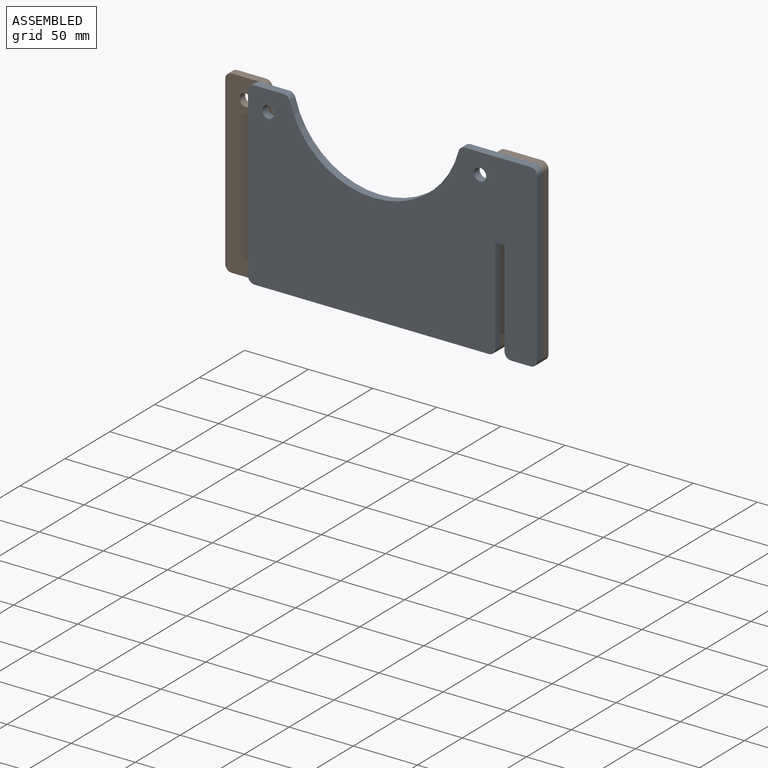
[diagram: assembled view]
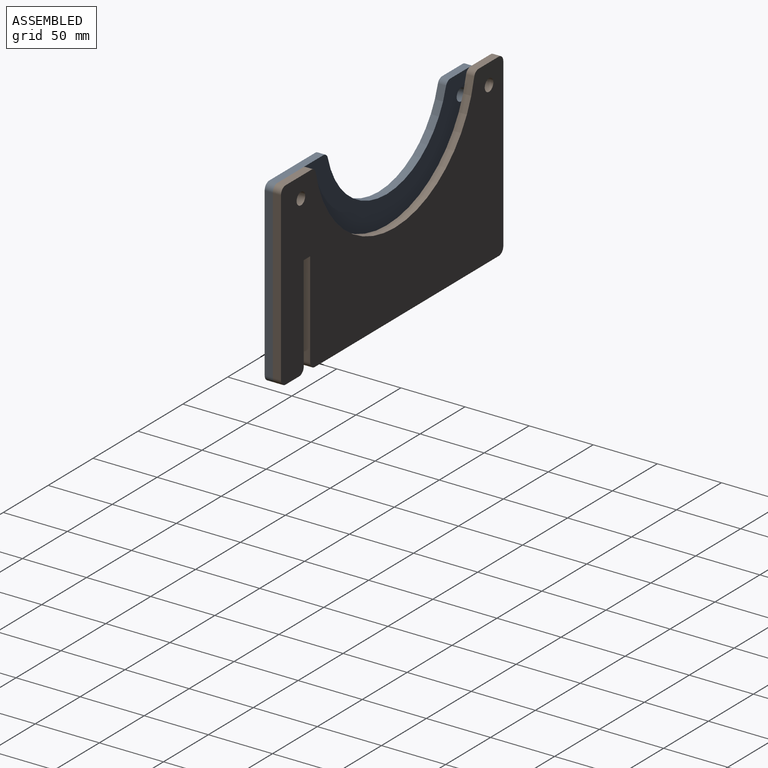
[diagram: assembled view, second angle]
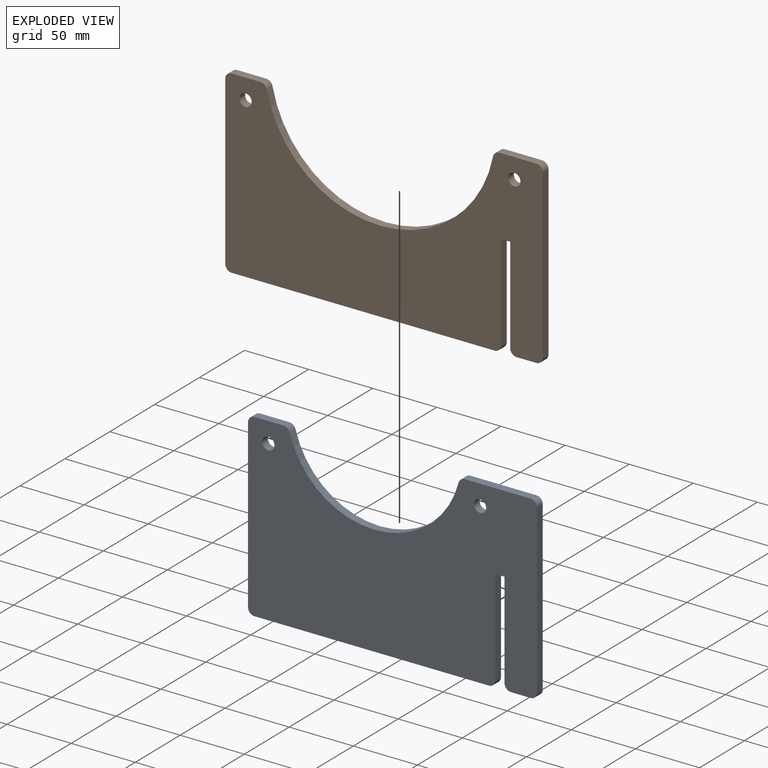
[diagram: exploded view]
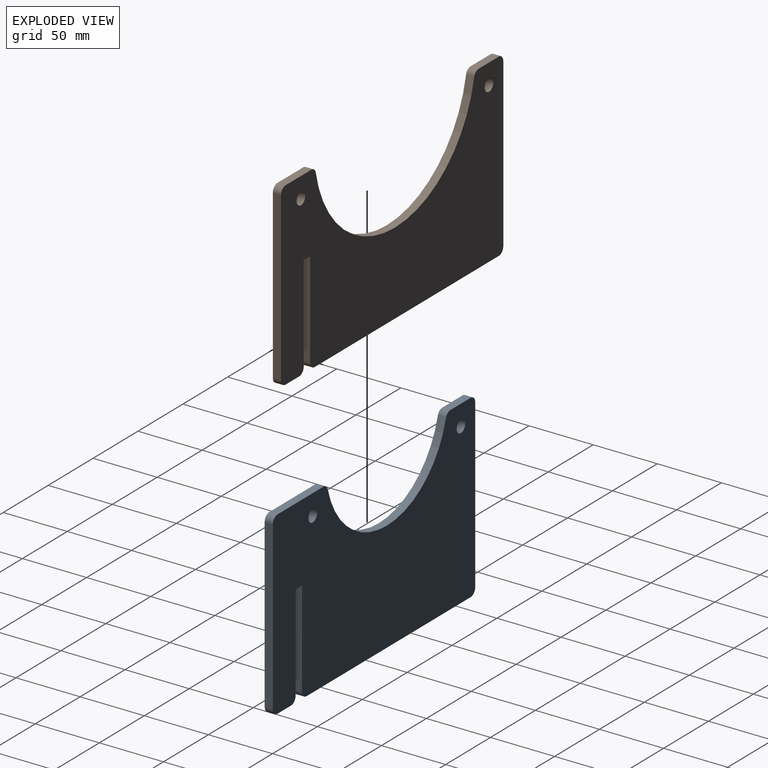
[diagram: exploded view, second angle]
ASSEMBLY  parts=2 mates=3
PART A: 22 faces, bbox 225.4x6.4x140.5 mm
  f0: plane 130.33x6.35mm, normal (1,0,0), area 827.6mm2, adj f12,f13,f14,f21
  f1: plane 51.22x6.35mm, normal (0,0,1), area 325.2mm2, adj f12,f13,f14,f15
  f2: cylinder r=68.04mm len=131.58mm, axis (0,1,0), area 1134.5mm2, adj f12,f13,f15,f16
  f3: plane 22.64x6.35mm, normal (0,0,1), area 143.8mm2, adj f12,f13,f16,f17
  f4: plane 130.33x6.35mm, normal (-1,0,0), area 827.6mm2, adj f12,f13,f17,f18
  f5: plane 182.72x6.35mm, normal (0,0,-1), area 1160.3mm2, adj f12,f13,f18,f19
  f6: plane 74.93x6.35mm, normal (1,0,0), area 475.8mm2, adj f7,f12,f13,f19
  f7: plane 7.14x6.35mm, normal (0,0,-1), area 45.4mm2, adj f6,f8,f12,f13
  f8: plane 74.93x6.35mm, normal (-1,0,0), area 475.8mm2, adj f7,f12,f13,f20
  f9: cylinder r=4.76mm len=9.53mm, axis (0,1,0), area 190mm2, adj f12,f13
  f10: plane 15.24x6.35mm, normal (0,0,-1), area 96.8mm2, adj f12,f13,f20,f21
  f11: cylinder r=4.76mm len=9.53mm, axis (0,1,0), area 190mm2, adj f12,f13
  f12: plane 225.43x140.49mm, normal (0,-1,0), area 25479.6mm2, adj f0,f1,f2,f3,f4,f5,f6,f7
  f13: plane 225.43x140.49mm, normal (0,1,0), area 25479.6mm2, adj f0,f1,f2,f3,f4,f5,f6,f7
  f14: cylinder r=5.08mm len=6.35mm, axis (0,-1,0), area 50.7mm2, adj f0,f1,f12,f13
  f15: cylinder r=5.08mm len=6.35mm, axis (0,1,0), area 42.3mm2, adj f1,f2,f12,f13
  f16: cylinder r=5.08mm len=6.35mm, axis (0,1,0), area 42.3mm2, adj f2,f3,f12,f13
  f17: cylinder r=5.08mm len=6.35mm, axis (0,1,0), area 50.7mm2, adj f3,f4,f12,f13
  f18: cylinder r=5.08mm len=6.35mm, axis (0,-1,0), area 50.7mm2, adj f4,f5,f12,f13
  f19: cylinder r=5.08mm len=6.35mm, axis (0,-1,0), area 50.7mm2, adj f5,f6,f12,f13
  f20: cylinder r=5.08mm len=6.35mm, axis (0,1,0), area 50.7mm2, adj f8,f10,f12,f13
  f21: cylinder r=5.08mm len=6.35mm, axis (0,1,0), area 50.7mm2, adj f0,f10,f12,f13
PART B: 22 faces, bbox 247.7x6.4x140.5 mm
  f0: plane 130.33x6.35mm, normal (1,0,0), area 827.6mm2, adj f12,f13,f14,f21
  f1: plane 28.76x6.35mm, normal (0,0,1), area 182.6mm2, adj f12,f13,f14,f15
  f2: cylinder r=89.93mm len=176.36mm, axis (0,1,0), area 1568.3mm2, adj f12,f13,f15,f16
  f3: plane 22.41x6.35mm, normal (0,0,1), area 142.3mm2, adj f12,f13,f16,f17
  f4: plane 130.33x6.35mm, normal (-1,0,0), area 827.6mm2, adj f12,f13,f17,f18
  f5: plane 204.95x6.35mm, normal (0,0,-1), area 1301.4mm2, adj f12,f13,f18,f19
  f6: plane 74.93x6.35mm, normal (1,0,0), area 475.8mm2, adj f7,f12,f13,f19
  f7: plane 7.14x6.35mm, normal (0,0,-1), area 45.4mm2, adj f6,f8,f12,f13
  f8: plane 74.93x6.35mm, normal (-1,0,0), area 475.8mm2, adj f7,f12,f13,f20
  f9: cylinder r=4.76mm len=9.53mm, axis (0,1,0), area 190mm2, adj f12,f13
  f10: plane 15.24x6.35mm, normal (0,0,-1), area 96.8mm2, adj f12,f13,f20,f21
  f11: cylinder r=4.76mm len=9.53mm, axis (0,1,0), area 190mm2, adj f12,f13
  f12: plane 247.65x140.49mm, normal (0,-1,0), area 23767.1mm2, adj f0,f1,f2,f3,f4,f5,f6,f7
  f13: plane 247.65x140.49mm, normal (0,1,0), area 23767.1mm2, adj f0,f1,f2,f3,f4,f5,f6,f7
  f14: cylinder r=5.08mm len=6.35mm, axis (0,-1,0), area 50.7mm2, adj f0,f1,f12,f13
  f15: cylinder r=5.08mm len=6.35mm, axis (0,1,0), area 44.3mm2, adj f1,f2,f12,f13
  f16: cylinder r=5.08mm len=6.35mm, axis (0,1,0), area 44.3mm2, adj f2,f3,f12,f13
  f17: cylinder r=5.08mm len=6.35mm, axis (0,1,0), area 50.7mm2, adj f3,f4,f12,f13
  f18: cylinder r=5.08mm len=6.35mm, axis (0,-1,0), area 50.7mm2, adj f4,f5,f12,f13
  f19: cylinder r=5.08mm len=6.35mm, axis (0,-1,0), area 50.7mm2, adj f5,f6,f12,f13
  f20: cylinder r=5.08mm len=6.35mm, axis (0,1,0), area 50.7mm2, adj f8,f10,f12,f13
  f21: cylinder r=5.08mm len=6.35mm, axis (0,1,0), area 50.7mm2, adj f0,f10,f12,f13
PLACE A t=(-51.27,-26.7,21.61)mm
PLACE B t=(-62.38,-20.35,21.61)mm
MATE planar A.f10 <-> B.f10  axis (0,0,-1) through (48.74,-29.87,-48.63)mm
MATE planar B.f19 <-> A.f13  axis (0,-1,0) through (23.82,-26.7,-43.55)mm
MATE planar A.f0 <-> B.f0  axis (1,0,0) through (61.44,-29.87,21.61)mm
